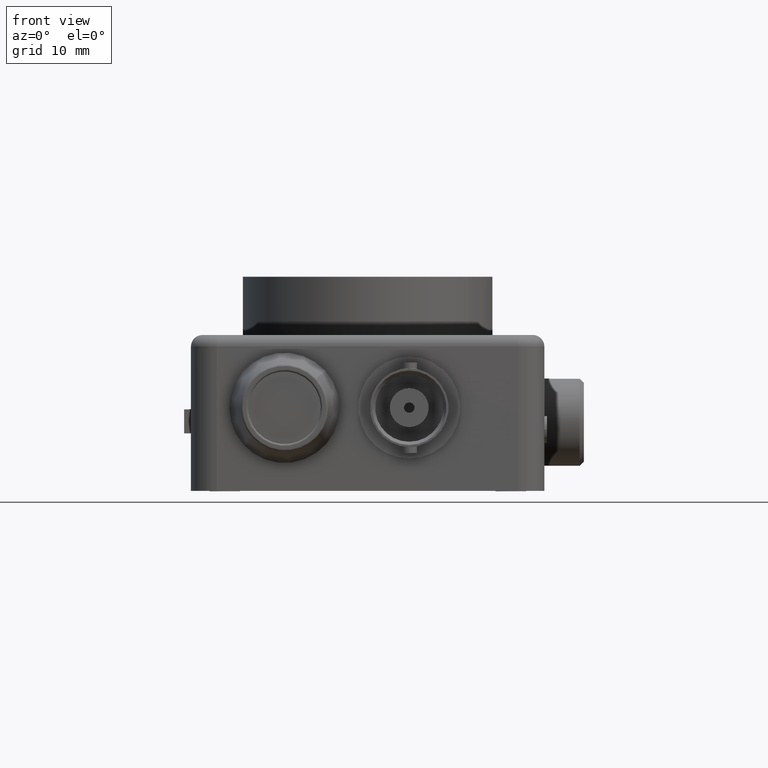
[diagram: clean part render]
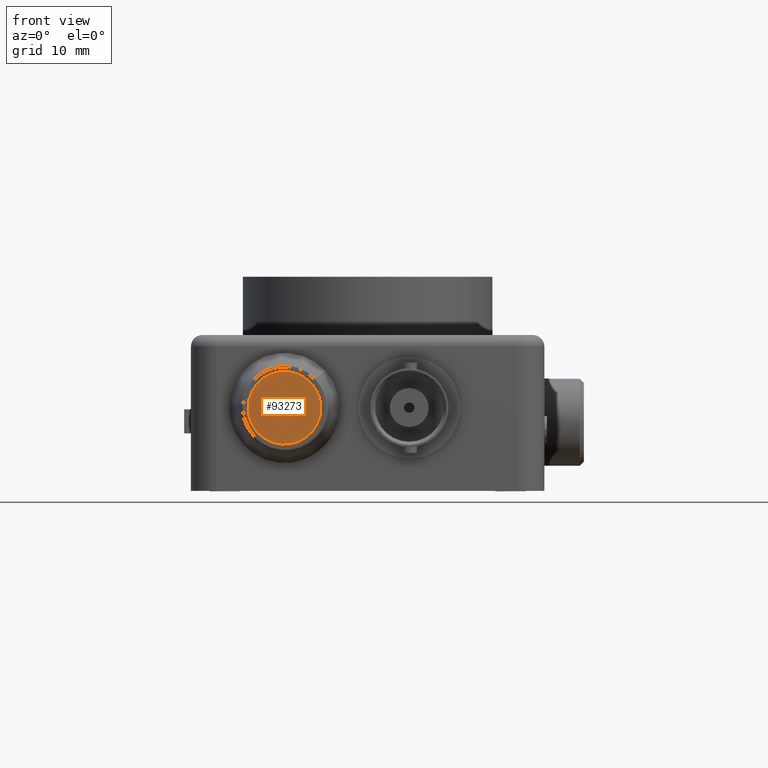
[diagram: same view with one face highlighted and labeled with its STEP entity id]
A machine part, front view. The second image highlights one B-rep face of the part: STEP entity #93273.
In plain terms, the highlighted planar face has unit normal (-0, -1, 0).
Its self-contained STEP definition (entity closure, byte-faithful):
#4036 = CARTESIAN_POINT ( 'NONE',  ( 0.3208445192139631800, -0.2999999999999999300, 0.2819158698938413200 ) ) ;
#16341 = AXIS2_PLACEMENT_3D ( 'NONE', #93780, #32731, #104036 ) ;
#21565 = EDGE_CURVE ( 'NONE', #101754, #71817, #104521, .T. ) ;
#27636 = DIRECTION ( 'NONE',  ( -2.027184870627574200E-031, -1.000000000000000000, 1.224606353822364700E-016 ) ) ;
#32731 = DIRECTION ( 'NONE',  ( -2.027184870627574200E-031, -1.000000000000000000, 1.224606353822364700E-016 ) ) ;
#36428 = FACE_OUTER_BOUND ( 'NONE', #99803, .T. ) ;
#48628 = ORIENTED_EDGE ( 'NONE', *, *, #21565, .T. ) ;
#57377 = PLANE ( 'NONE',  #86263 ) ;
#59620 = DIRECTION ( 'NONE',  ( -2.095411779493312600E-031, -1.000000000000000000, 1.224606353822364400E-016 ) ) ;
#71817 = VERTEX_POINT ( 'NONE', #75817 ) ;
#74678 = AXIS2_PLACEMENT_3D ( 'NONE', #88734, #27636, #99004 ) ;
#75817 = CARTESIAN_POINT ( 'NONE',  ( 0.5791554807860345200, -0.2999999999999999300, 0.5180841301061567300 ) ) ;
#78788 = CIRCLE ( 'NONE', #74678, 0.1749999999999999900 ) ;
#86263 = AXIS2_PLACEMENT_3D ( 'NONE', #120648, #59620, #130882 ) ;
#88734 = CARTESIAN_POINT ( 'NONE',  ( 0.4499999999999988500, -0.2999999999999999300, 0.3999999999999990200 ) ) ;
#93273 = ADVANCED_FACE ( 'NONE', ( #36428 ), #57377, .T. ) ;
#93780 = CARTESIAN_POINT ( 'NONE',  ( 0.4499999999999988500, -0.2999999999999999300, 0.3999999999999990200 ) ) ;
#99004 = DIRECTION ( 'NONE',  ( -0.7380313187773466200, 0.0000000000000000000, -0.6747664577494724100 ) ) ;
#99803 = EDGE_LOOP ( 'NONE', ( #48628, #124538 ) ) ;
#101754 = VERTEX_POINT ( 'NONE', #4036 ) ;
#104036 = DIRECTION ( 'NONE',  ( -0.7380313187773466200, 0.0000000000000000000, -0.6747664577494724100 ) ) ;
#104521 = CIRCLE ( 'NONE', #16341, 0.1749999999999999900 ) ;
#111047 = EDGE_CURVE ( 'NONE', #71817, #101754, #78788, .T. ) ;
#120648 = CARTESIAN_POINT ( 'NONE',  ( 0.4499999999999988500, -0.2999999999999999300, 0.3999999999999990200 ) ) ;
#124538 = ORIENTED_EDGE ( 'NONE', *, *, #111047, .T. ) ;
#130882 = DIRECTION ( 'NONE',  ( -0.7380313187773465100, -8.263232915062125900E-017, -0.6747664577494725300 ) ) ;